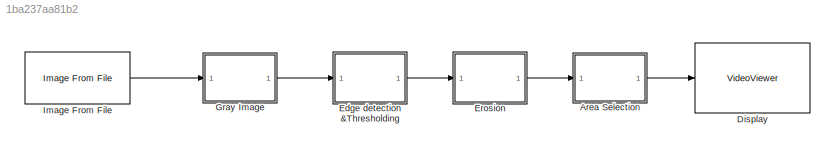
MODEL slx_1ba237aa81b2
KIND model
CONFIG AbsTol = auto
CONFIG EnableMultiTasking = off
CONFIG FixedStep = auto
CONFIG MaxStep = auto
CONFIG MinStep = auto
CONFIG RelTol = 1e-3
CONFIG SampleTimeConstraint = Unconstrained
CONFIG SolverName = VariableStepAuto
CONFIG StartTime = 0.0
CONFIG StopTime = 10.0
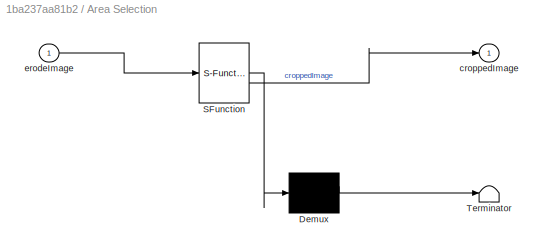
BLOCK [SubSystem] Area Selection
  ErrorFcn = Stateflow.Translate.translate
  PermitHierarchicalResolution = ExplicitOnly
  SFBlockType = MATLAB Function
  TreatAsAtomicUnit = on
BLOCK [Demux] Area Selection/ Demux 
  Outputs = 1
BLOCK [S-Function] Area Selection/ SFunction 
  EnableBusSupport = on
  FunctionName = sf_sfun
  PortCounts = [1 2]
  SFcnIsStateOwnerBlock = off
  SFunctionDeploymentMode = off
  Tag = Stateflow S-Function 4
BLOCK [Terminator] Area Selection/ Terminator 
BLOCK [Outport] Area Selection/croppedImage
BLOCK [Inport] Area Selection/erodeImage
BLOCK [VideoViewer] Display
  FigPos = [1 814 1536 716]
  ScopeSpecificationString = vipscopes.VideoViewerScopeCfg('CurrentConfiguration', extmgr.ConfigurationSet(extmgr.Configuration('Core','General UI',true),extmgr.Configuration('Core','Source UI',true),extmgr.Configuration('Sources','WiredSimulink',true),extmgr.Configuration('Visuals','Video',true),extmgr.Configuration('Tools','Image Navigation Tools',true),extmgr.Configuration('Tools','Image Tool',true),extmgr.Configuration('T...<+73ch>
  colormapValue = gray(256)
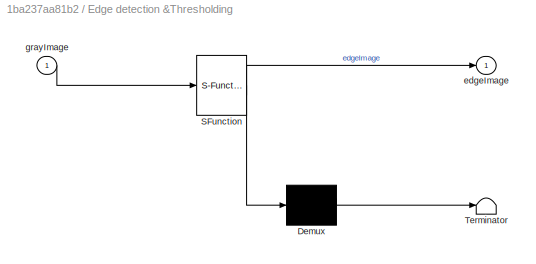
BLOCK [SubSystem] Edge detection &Thresholding
  ErrorFcn = Stateflow.Translate.translate
  PermitHierarchicalResolution = ExplicitOnly
  SFBlockType = MATLAB Function
  TreatAsAtomicUnit = on
BLOCK [Demux] Edge detection &Thresholding/ Demux 
  Outputs = 1
BLOCK [S-Function] Edge detection &Thresholding/ SFunction 
  EnableBusSupport = on
  FunctionName = sf_sfun
  PortCounts = [1 2]
  SFcnIsStateOwnerBlock = off
  SFunctionDeploymentMode = off
  Tag = Stateflow S-Function 2
BLOCK [Terminator] Edge detection &Thresholding/ Terminator 
BLOCK [Outport] Edge detection &Thresholding/edgeImage
BLOCK [Inport] Edge detection &Thresholding/grayImage
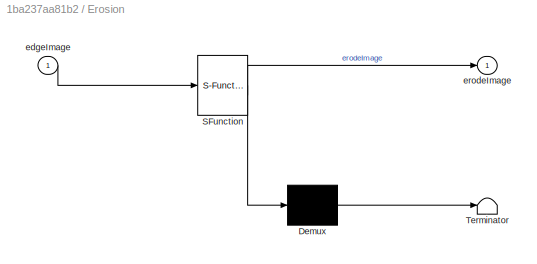
BLOCK [SubSystem] Erosion
  ErrorFcn = Stateflow.Translate.translate
  PermitHierarchicalResolution = ExplicitOnly
  SFBlockType = MATLAB Function
  TreatAsAtomicUnit = on
BLOCK [Demux] Erosion/ Demux 
  Outputs = 1
BLOCK [S-Function] Erosion/ SFunction 
  EnableBusSupport = on
  FunctionName = sf_sfun
  PortCounts = [1 2]
  SFcnIsStateOwnerBlock = off
  SFunctionDeploymentMode = off
  Tag = Stateflow S-Function 3
BLOCK [Terminator] Erosion/ Terminator 
BLOCK [Inport] Erosion/edgeImage
BLOCK [Outport] Erosion/erodeImage
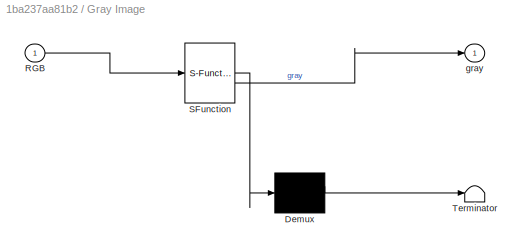
BLOCK [SubSystem] Gray Image
  ErrorFcn = Stateflow.Translate.translate
  PermitHierarchicalResolution = ExplicitOnly
  SFBlockType = MATLAB Function
  TreatAsAtomicUnit = on
BLOCK [Demux] Gray Image/ Demux 
  Outputs = 1
BLOCK [S-Function] Gray Image/ SFunction 
  EnableBusSupport = on
  FunctionName = sf_sfun
  PortCounts = [1 2]
  SFcnIsStateOwnerBlock = off
  SFunctionDeploymentMode = off
  Tag = Stateflow S-Function 1
BLOCK [Terminator] Gray Image/ Terminator 
BLOCK [Inport] Gray Image/RGB
BLOCK [Outport] Gray Image/gray
BLOCK [Reference] Image From File  REF=visionsources/Image From File
  SourceBlock = visionsources/Image From File
  SourceType = Image From File
  Tag = vipblks_nd
LINE Area Selection:1 -> Display:1
LINE Edge detection &Thresholding:1 -> Erosion:1
LINE Erosion:1 -> Area Selection:1
LINE Gray Image:1 -> Edge detection &Thresholding:1
LINE Image From File:1 -> Gray Image:1
CHART Edge detection &Thresholding states=1 transitions=1
  STATE_LABEL 'eML_blk_kernel()'
  STATE_LABEL "SCRIPT:\nfunction edgeImage = sobelThreshold(grayImage)\n    % Sobel kernels\n    k_horizontal = [-1 0 1; -2 0 2; -1 0 1];\n    k_vertical = [-1 -2 -1; 0 0 0; 1 2 1];\n\n    % Calculate horizontal and vertical gradients\n    H = conv2(double(grayImage), k_horizontal, 'same');\n    V = conv2(double(grayImage), k_vertical, 'same');\n\n    E = sqrt(H.^2 + V.^2);\n\n    E = E / max(E(:));\n\n    threshold = 0.4;\n  ...<+34ch>"
CHART Erosion states=1 transitions=1
  STATE_LABEL 'eML_blk_kernel()'
  STATE_LABEL "SCRIPT:\nfunction erodeImage = sobelerode(edgeImage)\n    SE = strel('square', 1);\n    erodeImage = imerode(edgeImage, SE);\n    \nend"
CHART Area Selection states=1 transitions=1
  STATE_LABEL 'eML_blk_kernel()'
  STATE_LABEL 'SCRIPT:\nfunction croppedImage = detectNumberPlate(erodeImage)\n   \n    [rows, cols, ~] = size(erodeImage);  \n\n    x = round(cols/4);        \n    y = round(rows/2);        \n    width = min(450, cols/2); \n    height = min(200, rows/4); \n\n    croppedImage = imcrop(erodeImage, [x, y, width-1, height-1]);\nend\n'
CHART Gray Image states=1 transitions=1
  STATE_LABEL 'eML_blk_kernel()'
  STATE_LABEL 'SCRIPT:\nfunction gray = RGB2gray(RGB)\n    gray = rgb2gray(RGB);\nend\n\n'
CHART  states=0 transitions=0
CHART  states=0 transitions=0
CHART  states=0 transitions=0
CHART  states=0 transitions=0
